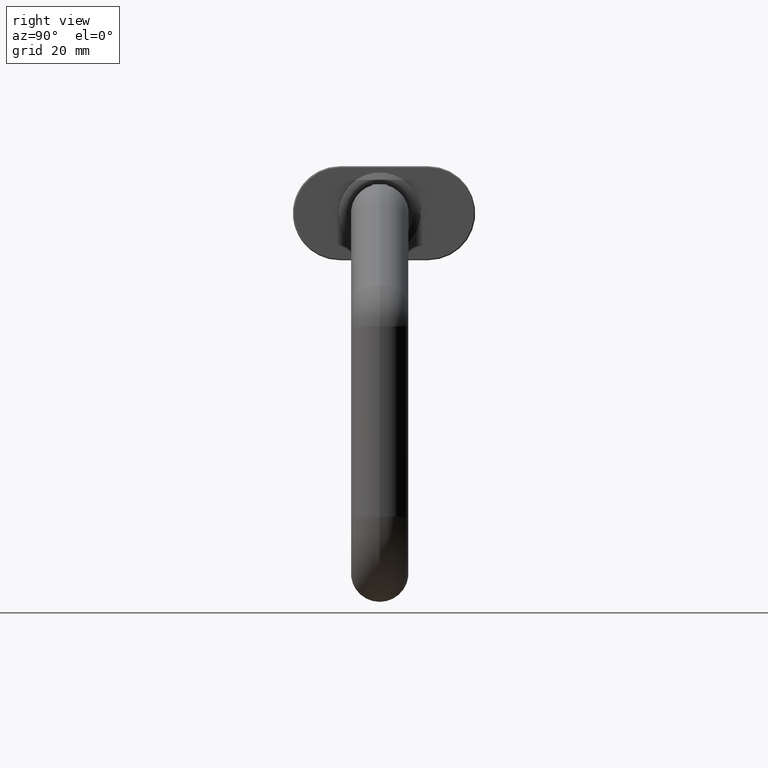
[diagram: clean part render]
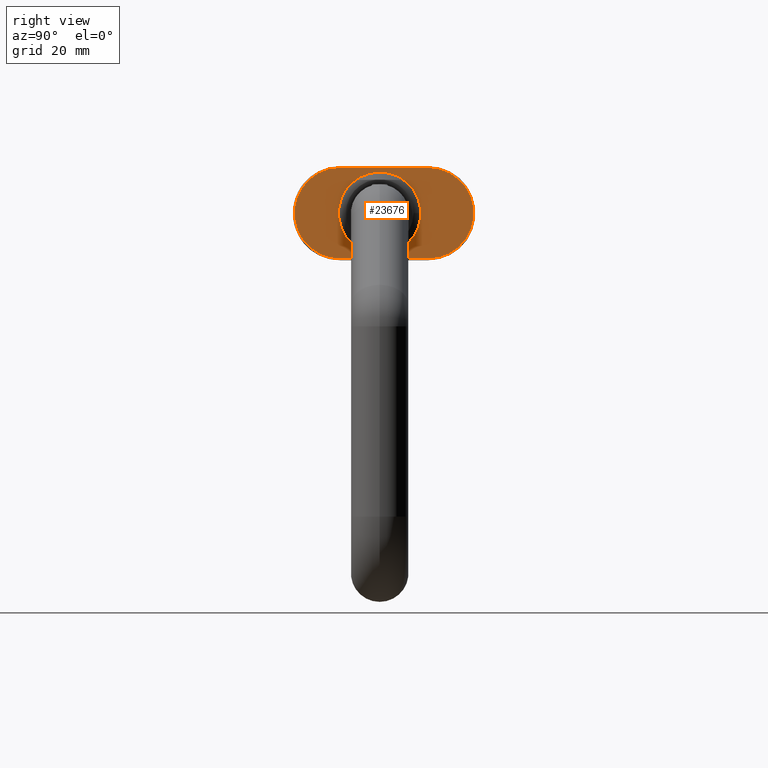
[diagram: same view with one face highlighted and labeled with its STEP entity id]
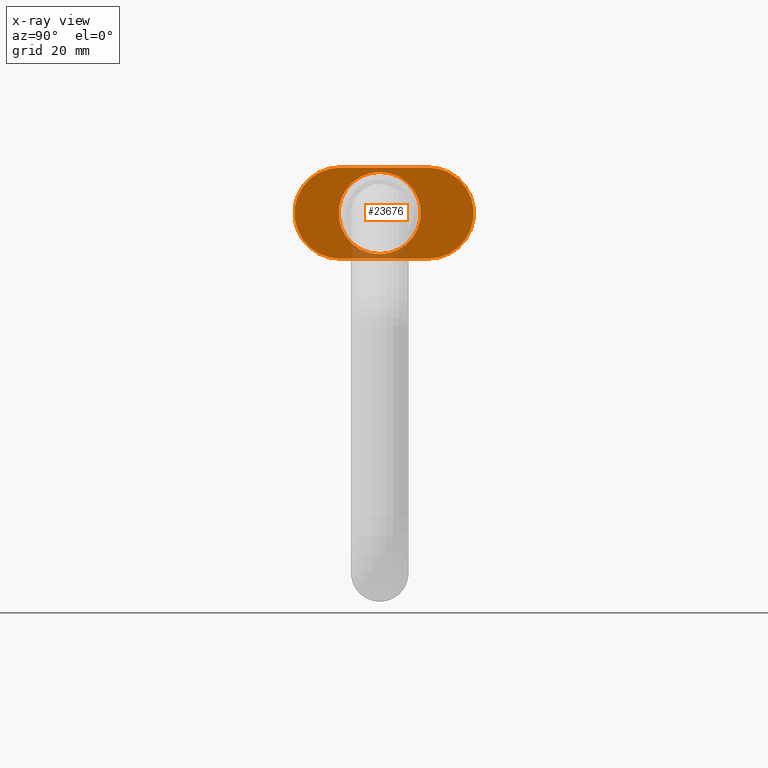
[diagram: x-ray of the same camera — body ghosted, the highlighted face saturated]
A machine part, right view. The second image highlights one B-rep face of the part: STEP entity #23676.
The next image is the same camera in x-ray: the body ghosted, the highlighted face saturated — about 5% of this face is hidden behind the body in this view.
In plain terms, the highlighted planar face has unit normal (1, -0, -0).
Its self-contained STEP definition (entity closure, byte-faithful):
#367 = VERTEX_POINT ( 'NONE', #15315 ) ;
#2137 = CARTESIAN_POINT ( 'NONE',  ( -4.400605526280645814E-15, 15.00000000000000355, 0.000000000000000000 ) ) ;
#2187 = CARTESIAN_POINT ( 'NONE',  ( -15.50000000000000711, -15.00000000000000178, 0.000000000000000000 ) ) ;
#3901 = CARTESIAN_POINT ( 'NONE',  ( -15.50000000000001421, 15.00000000000000000, 0.000000000000000000 ) ) ;
#4505 = FACE_OUTER_BOUND ( 'NONE', #21629, .T. ) ;
#4553 = DIRECTION ( 'NONE',  ( 2.312964634635743450E-16, -1.000000000000000000, 0.000000000000000000 ) ) ;
#5489 = AXIS2_PLACEMENT_3D ( 'NONE', #2137, #35131, #9710 ) ;
#8309 = CARTESIAN_POINT ( 'NONE',  ( 15.50000000000000888, -15.00000000000000000, 0.000000000000000000 ) ) ;
#9710 = DIRECTION ( 'NONE',  ( 1.000000000000000000, 0.000000000000000000, 0.000000000000000000 ) ) ;
#10483 = LINE ( 'NONE', #3901, #24038 ) ;
#13639 = DIRECTION ( 'NONE',  ( 0.000000000000000000, 0.000000000000000000, 1.000000000000000000 ) ) ;
#14851 = CIRCLE ( 'NONE', #15757, 14.00000000000000000 ) ;
#15315 = CARTESIAN_POINT ( 'NONE',  ( 15.50000000000000888, 14.99999999999999822, 0.000000000000000000 ) ) ;
#15757 = AXIS2_PLACEMENT_3D ( 'NONE', #44998, #16734, #16423 ) ;
#16423 = DIRECTION ( 'NONE',  ( 1.000000000000000000, 0.000000000000000000, 0.000000000000000000 ) ) ;
#16734 = DIRECTION ( 'NONE',  ( 0.000000000000000000, 0.000000000000000000, 1.000000000000000000 ) ) ;
#19403 = EDGE_CURVE ( 'NONE', #24082, #42345, #10483, .T. ) ;
#21292 = EDGE_CURVE ( 'NONE', #22893, #22893, #14851, .T. ) ;
#21629 = EDGE_LOOP ( 'NONE', ( #45446, #33096, #35854, #35120 ) ) ;
#22225 = CARTESIAN_POINT ( 'NONE',  ( 14.00000000000000000, -1.499999999999997780, 0.000000000000000000 ) ) ;
#22893 = VERTEX_POINT ( 'NONE', #22225 ) ;
#23676 = ADVANCED_FACE ( 'NONE', ( #25977, #4505 ), #28496, .T. ) ;
#23986 = EDGE_CURVE ( 'NONE', #42345, #36707, #43917, .T. ) ;
#24038 = VECTOR ( 'NONE', #4553, 1000.000000000000000 ) ;
#24082 = VERTEX_POINT ( 'NONE', #31618 ) ;
#24188 = EDGE_LOOP ( 'NONE', ( #26301 ) ) ;
#24374 = DIRECTION ( 'NONE',  ( 1.000000000000000000, 0.000000000000000000, -0.000000000000000000 ) ) ;
#24626 = AXIS2_PLACEMENT_3D ( 'NONE', #37959, #34288, #42048 ) ;
#25865 = EDGE_CURVE ( 'NONE', #36707, #367, #33659, .T. ) ;
#25977 = FACE_BOUND ( 'NONE', #24188, .T. ) ;
#26301 = ORIENTED_EDGE ( 'NONE', *, *, #21292, .F. ) ;
#27858 = CARTESIAN_POINT ( 'NONE',  ( -4.400605526280645814E-15, 15.00000000000000355, 0.000000000000000000 ) ) ;
#28496 = PLANE ( 'NONE',  #35206 ) ;
#29386 = CIRCLE ( 'NONE', #5489, 15.50000000000001421 ) ;
#31618 = CARTESIAN_POINT ( 'NONE',  ( -15.50000000000001954, 14.99999999999999467, 0.000000000000000000 ) ) ;
#33067 = VECTOR ( 'NONE', #46523, 1000.000000000000000 ) ;
#33096 = ORIENTED_EDGE ( 'NONE', *, *, #25865, .T. ) ;
#33659 = LINE ( 'NONE', #43067, #33067 ) ;
#34288 = DIRECTION ( 'NONE',  ( 0.000000000000000000, 0.000000000000000000, 1.000000000000000000 ) ) ;
#35120 = ORIENTED_EDGE ( 'NONE', *, *, #19403, .T. ) ;
#35131 = DIRECTION ( 'NONE',  ( 0.000000000000000000, 0.000000000000000000, 1.000000000000000000 ) ) ;
#35206 = AXIS2_PLACEMENT_3D ( 'NONE', #27858, #13639, #24374 ) ;
#35271 = EDGE_CURVE ( 'NONE', #367, #24082, #29386, .T. ) ;
#35854 = ORIENTED_EDGE ( 'NONE', *, *, #35271, .T. ) ;
#36707 = VERTEX_POINT ( 'NONE', #8309 ) ;
#37959 = CARTESIAN_POINT ( 'NONE',  ( -2.563635327559615436E-15, -15.00000000000000000, 0.000000000000000000 ) ) ;
#42048 = DIRECTION ( 'NONE',  ( 1.000000000000000000, 0.000000000000000000, 0.000000000000000000 ) ) ;
#42345 = VERTEX_POINT ( 'NONE', #2187 ) ;
#43067 = CARTESIAN_POINT ( 'NONE',  ( 15.50000000000001421, 15.00000000000000355, 0.000000000000000000 ) ) ;
#43917 = CIRCLE ( 'NONE', #24626, 15.50000000000001066 ) ;
#44998 = CARTESIAN_POINT ( 'NONE',  ( 0.000000000000000000, -1.499999999999997780, 0.000000000000000000 ) ) ;
#45446 = ORIENTED_EDGE ( 'NONE', *, *, #23986, .T. ) ;
#46523 = DIRECTION ( 'NONE',  ( 0.000000000000000000, 1.000000000000000000, 0.000000000000000000 ) ) ;